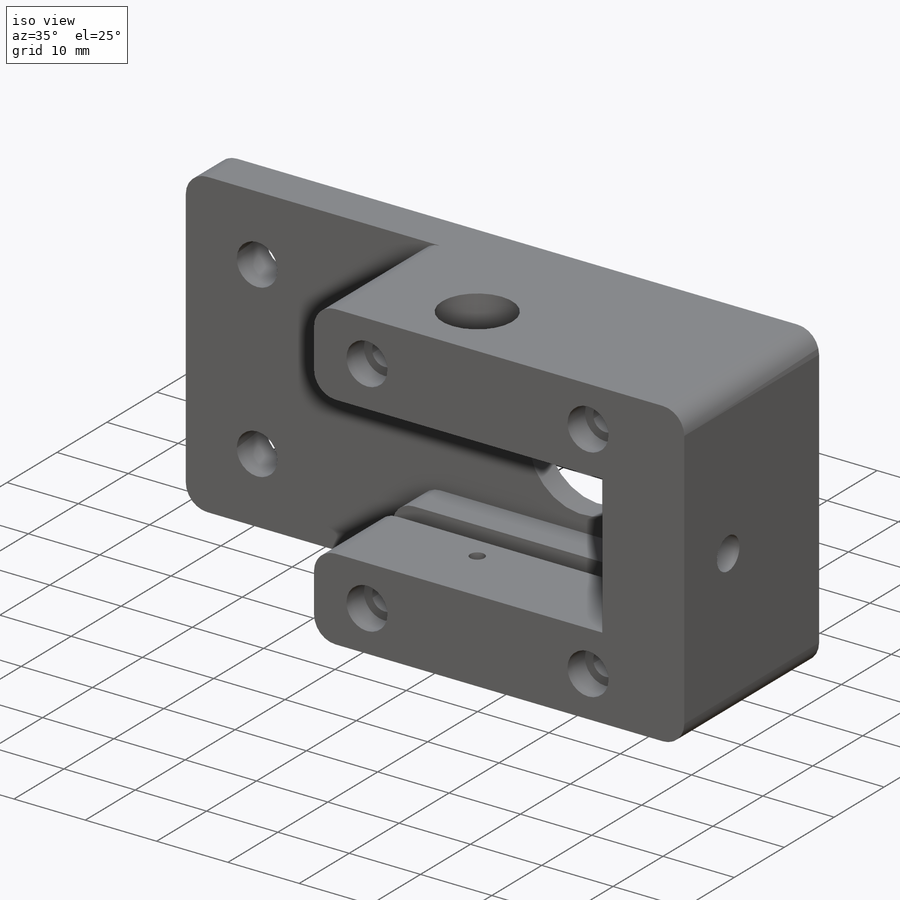
[diagram: iso view]
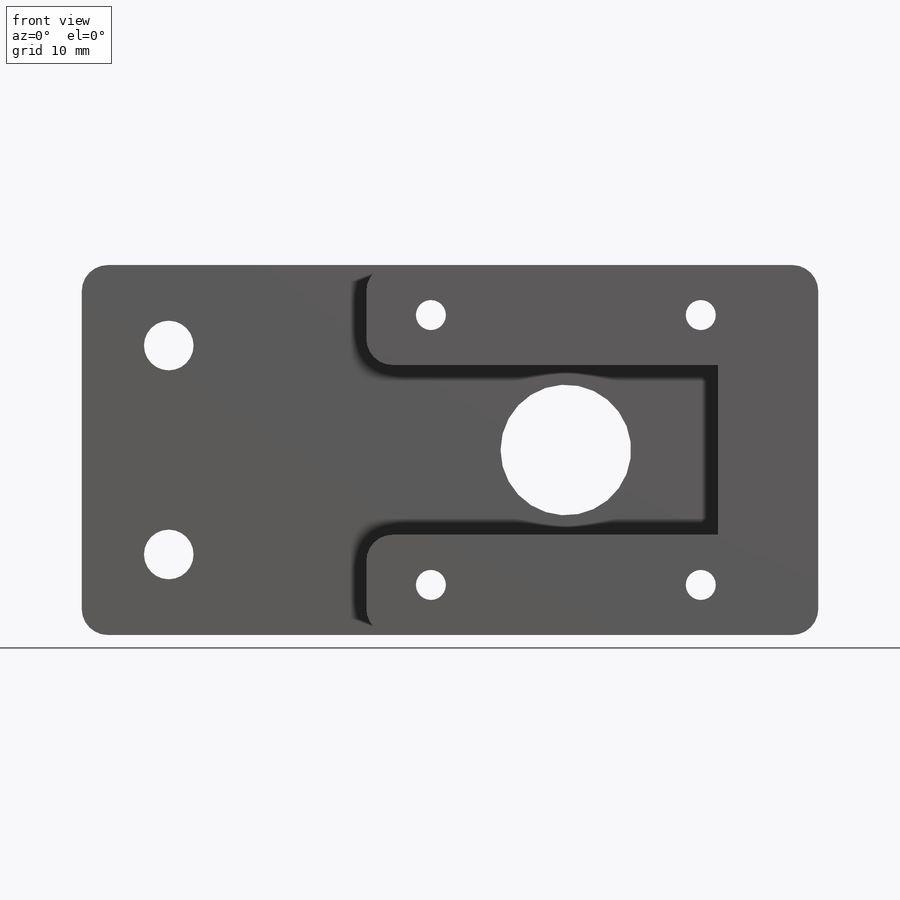
[diagram: front view]
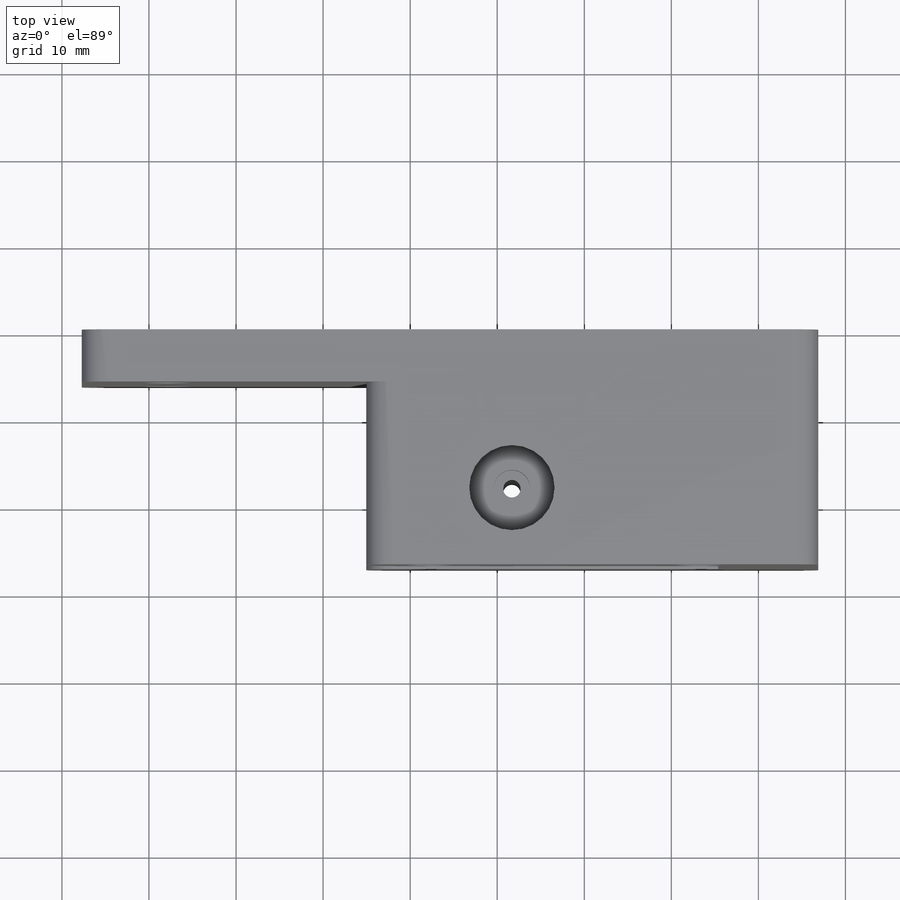
[diagram: top view]
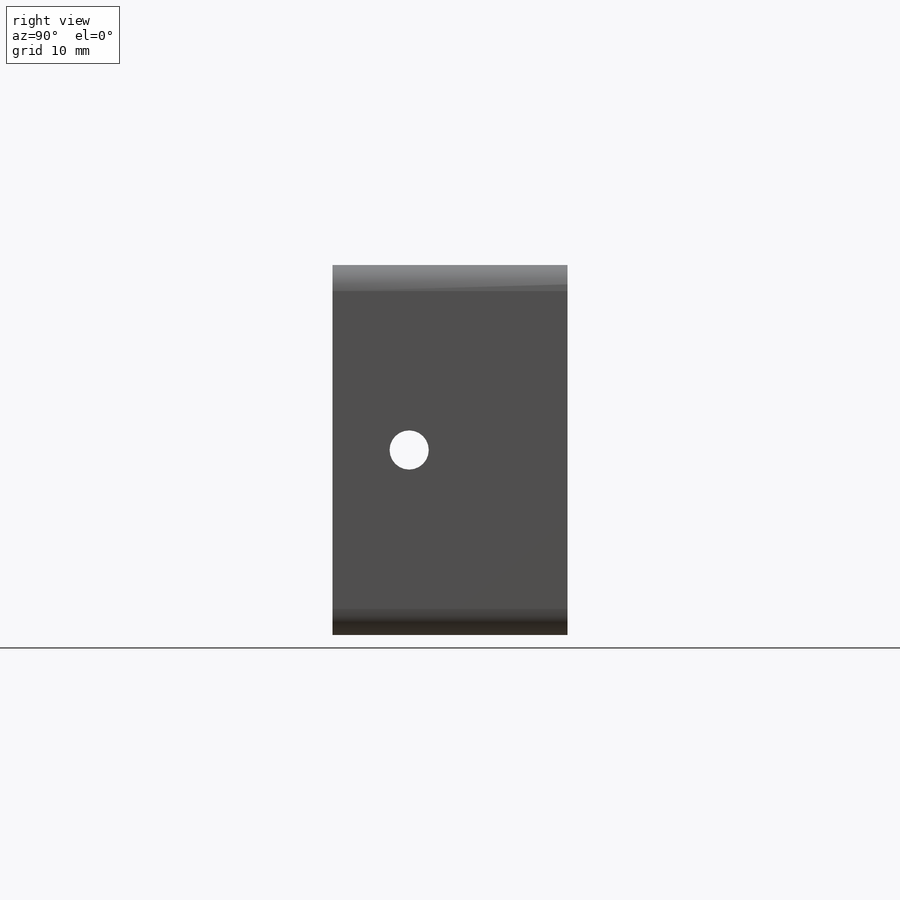
[diagram: right view]
SOLIDWORKS PART (.sldprt)
format: sldprt  version: not decoded by parser v0  size: 373,760 bytes
history: native  units: mm
features: sketch x10, cut_extrude x8, extrude x2, chamfer x2, material x1 (+16 scaffold rows collapsed)
feature tree (39):
  scaffold x16  (default folders/planes/origin — collapsed)
  material  "Material <not specified>"
  sketch  "Sketch1"  dims[c1.D1=3.0mm c1.D5=~3.558484mm c1.D9=3.45mm c1.D10=3.425mm c2.D1=83.5mm c2.D2=10.0mm c2.D3=~11.476434mm c2.D4=90.0deg c2.D5=15.5mm c2.D6=~31.815584mm c3.D5=31.0mm c3.D6=31.0mm c3.D7=31.0mm c4.D7=~0.133827deg c4.D8=31.0mm c5.D8=0.0deg c5.D9=31.0mm c5.D7=13.5mm c6.D8=42.5mm c6.D10=24.0mm c6.D3=12.0mm c6.D4=12.0mm]
  extrude  "Boss-Extrude1"  Depth=6mm
  sketch  "Sketch7"  dims[D1=~10.375779mm]
  cut_extrude  "Cut-Extrude4"  Depth=2.5mm
  sketch  "Sketch8"  dims[D1=15.0mm]
  cut_extrude  "Cut-Extrude5"  Depth=6mm
  sketch  "Sketch10"  dims[c1.D1=3.0mm c1.D2=3.0mm c1.D3=3.0mm c1.D6=3.45mm c1.D7=3.45mm c2.D3=10.0mm c2.D4=11.5mm c2.D5=11.5mm c3.D3=20.0mm]
  extrude  "Boss-Extrude4"  Depth=21mm
  sketch  "Sketch11"  dims[D1=7.0mm D2=3.38mm D3=26.0mm]
  cut_extrude  "Cut-Extrude6"  [1 undecoded]
  sketch  "Sketch14"  dims[c1.D1=~1.643011mm c1.D3=2.0mm c2.D1=7.0mm c2.D2=35.2mm c3.D1=8.81mm c3.D2=35.2mm]
  cut_extrude  "Cut-Extrude7"  [1 undecoded]
  chamfer  "Chamfer1"  Distance=3mm Angle=45deg
  sketch  "Sketch19"  dims[D1=9.8mm D2=1.125mm]
  cut_extrude  "Cut-Extrude9"  Depth=5mm
  sketch  "Sketch20"  dims[D1=4.25mm]
  cut_extrude  "Cut-Extrude10"  Depth=3mm
  sketch  "Sketch21"  dims[D1=5.75mm D2=5.75mm]
  cut_extrude  "Cut-Extrude11"  Depth=3.5mm
  sketch  "Sketch22"  dims[D1=4.5mm D2=6.88mm]
  cut_extrude  "Cut-Extrude12"  [1 undecoded]
  chamfer  "Chamfer5"  Distance=3mm Angle=45deg
decode coverage: 19 of 22 modeling features carry decoded parameters
note: ~ marks probable driven/reference dimensions
note: 3 parameter values undecoded
summary: no parameter record found for 3 features
note: suppression state not decoded; provenance and decode notes live in map.json
